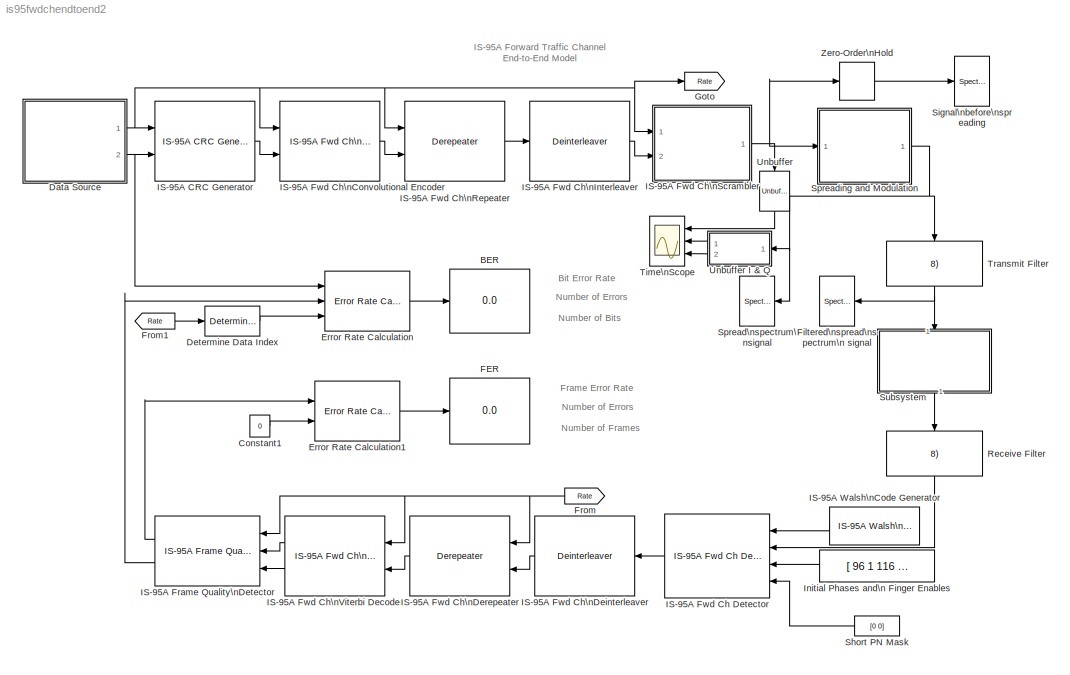
MODEL is95fwdchendtoend2
KIND model
CONFIG AbsTol = 1e-6
CONFIG FixedStep = auto
CONFIG MaxStep = auto
CONFIG MinStep = auto
CONFIG RelTol = 1e-3
CONFIG Solver = VariableStepDiscrete
CONFIG SolverMode = SingleTasking
CONFIG StartTime = 0.0
CONFIG StopTime = 600
BLOCK [Display] BER
  Decimation = 1
  Floating = off
  Format = short
  Ports = [1]
  SampleTime = -1
BLOCK [Constant] Constant1
  Value = 0
  VectorParams1D = on
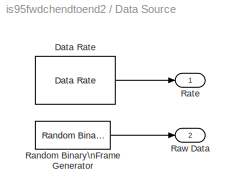
BLOCK [SubSystem] Data Source
  Ports = [0, 2]
  RTWFcnNameOpts = Auto
  RTWFileNameOpts = Auto
  RTWSystemCode = Auto
  ShowPortLabels = on
  TreatAsAtomicUnit = off
BLOCK [Reference] Data Source/Data Rate  REF=cdmaprivate/Data Rate  (lib defined in mdl_204704d9dd4c)
  Ports = [0, 1]
  SourceBlock = cdmaprivate/Data Rate
  SourceType = Base Station Transmitter Data Rate
  rate = Full
BLOCK [Reference] Data Source/Random Binary\nFrame Generator  REF=cdmaprivate/Random Binary\nFrame Generator  (lib defined in mdl_204704d9dd4c)
  N = 268
  Ports = [0, 1]
  SourceBlock = cdmaprivate/Random Binary\nFrame Generator
  SourceType = Random Binary Frame Generator
  Ts = 1/(50*268)
  seed = 1234
BLOCK [Outport] Data Source/Rate
  InitialOutput = 0
  OutputWhenDisabled = held
  Port = 1
BLOCK [Outport] Data Source/Raw Data
  InitialOutput = 0
  OutputWhenDisabled = held
  Port = 2
BLOCK [Reference] Determine Data Index  REF=cdmaprivate/Determine Data Index  (lib defined in mdl_204704d9dd4c)
  Ports = [1, 1]
  SourceBlock = cdmaprivate/Determine Data Index
  SourceType = Determine Data Index
  rateSet = Rate Set I
BLOCK [Reference] Error Rate Calculation  REF=commsink2/Error Rate Calculation
  N = 2*268
  PMode = Port
  Ports = [3, 1]
  RsMode2 = off
  SourceBlock = commsink2/Error Rate Calculation
  SourceType = Error Rate Calculation
  WsName = ErrorVec
  cp_mode = Select samples from port
  st_delay = 2*268
  subframe = []
BLOCK [Reference] Error Rate Calculation1  REF=commsink2/Error Rate Calculation
  N = 0
  PMode = Port
  Ports = [2, 1]
  RsMode2 = off
  SourceBlock = commsink2/Error Rate Calculation
  SourceType = Error Rate Calculation
  WsName = ErrorVec
  cp_mode = Entire frame
  st_delay = 4
  subframe = []
BLOCK [Display] FER
  Decimation = 1
  Floating = off
  Format = short
  Ports = [1]
  SampleTime = -1
BLOCK [Reference] Filtered\nspread\nspectrum\n signal  REF=dspsnks3/Spectrum\nScope
  AxisGrid = on
  AxisLegend = off
  AxisProperties = off
  AxisZoom = on
  BufferSize = 8192
  DisplayProperties = off
  Domain = Frequency
  FFTlength = 1024
  FigPos = [339 281 602 134]
  FrameNumber = off
  HorizSpan = 1
  InheritXIncr = on
  LineProperties = off
  Memory = off
  OpenScopeAtSimStart = on
  OpenScopeImmediately = off
  Overlap = 0
  Ports = [1]
  ScopeProperties = on
  SourceBlock = dspsnks3/Spectrum\nScope
  SourceType = Spectrum Scope
  UseBuffer = on
  XIncr = 1.0
  XLabel = Samples
  XRange = [-Fs/2...Fs/2]
  XUnits = Hertz
  YLabel = Magnitude, dB
  YMax = 30
  YMin = -50
  YUnits = dB
  inpFftLenInherit = off
  numAvg = 10
BLOCK [From] From
  CloseFcn = tagdialog Close
  GotoTag = Rate
BLOCK [From] From1
  CloseFcn = tagdialog Close
  GotoTag = Rate
BLOCK [Goto] Goto
  GotoTag = Rate
  TagVisibility = local
BLOCK [Reference] IS-95A CRC Generator  REF=cdmalibv1p1/IS-95A Common/IS-95A CRC Generator  (lib defined in mdl_d5ab24ac8168)
  Ports = [2, 1]
  SourceBlock = cdmalibv1p1/IS-95A Common/IS-95A CRC Generator
  SourceType = IS-95A CRC Generator
  ch_type = Traffic
  rate_set = Rate Set I
BLOCK [Reference] IS-95A Frame Quality\nDetector  REF=cdmalibv1p1/IS-95A Common/IS-95A Frame Quality \nDetector  (lib defined in mdl_d5ab24ac8168)
  Ports = [3, 2]
  SourceBlock = cdmalibv1p1/IS-95A Common/IS-95A Frame Quality \nDetector
  SourceType = IS-95A Frame Quality Detector
  chType = Traffic
  rate2_metric = 0.9*1.5
  rate3_metric = 0.85*1.5
  rateSet = Rate Set I
BLOCK [Reference] IS-95A Fwd Ch Detector  REF=cdmalibv1p1/IS-95A Mobile Station Receiver/IS-95A Fwd Ch Detector  (lib defined in mdl_d5ab24ac8168)
  Ports = [4, 1]
  SourceBlock = cdmalibv1p1/IS-95A Mobile Station Receiver/IS-95A Fwd Ch Detector
  SourceType = IS-95A Fwd Ch Detector
  numSymb = 1
  rake_buff_size = 3
  rake_oversamp = 8
  rateSet = Rate Set I
  sampTime = 1/(50*384)
  wlshOrd = 6
BLOCK [Reference] IS-95A Fwd Ch\nConvolutional Encoder  REF=cdmalibv1p1/IS-95A Base Station Transmitter/IS-95A Fwd Ch\nConvolutional Encoder  (lib defined in mdl_d5ab24ac8168)
  Ports = [2, 1]
  SourceBlock = cdmalibv1p1/IS-95A Base Station Transmitter/IS-95A Fwd Ch\nConvolutional Encoder
  SourceType = IS-95A Fwd Ch Convolutional Encoder
  ch_type = Traffic
  enc_state = []
  rate_set = Rate Set I
BLOCK [Reference] IS-95A Fwd Ch\nDeinterleaver  REF=cdmalibv1p1/IS-95A Base Station Transmitter/IS-95A Fwd Ch\nInterleaver//Deinterleaver  (lib defined in mdl_d5ab24ac8168)
  Ports = [1, 1]
  SourceBlock = cdmalibv1p1/IS-95A Base Station Transmitter/IS-95A Fwd Ch\nInterleaver//Deinterleaver
  SourceType = IS-95A Fwd Ch Interleaver/Deinterleaver
  ch_type = Traffic
  int_select = Deinterleaver
BLOCK [Reference] IS-95A Fwd Ch\nDerepeater  REF=cdmalibv1p1/IS-95A Base Station Transmitter/IS-95A Fwd Ch\nRepeater//Derepeater  (lib defined in mdl_d5ab24ac8168)
  Ports = [2, 1]
  SourceBlock = cdmalibv1p1/IS-95A Base Station Transmitter/IS-95A Fwd Ch\nRepeater//Derepeater
  SourceType = IS-95A Fwd Ch Repeater/Derepeater
  ch_type = Traffic
  rate_set = Rate Set I
  rep_select = Derepeater
BLOCK [Reference] IS-95A Fwd Ch\nInterleaver  REF=cdmalibv1p1/IS-95A Base Station Transmitter/IS-95A Fwd Ch\nInterleaver//Deinterleaver  (lib defined in mdl_d5ab24ac8168)
  Ports = [1, 1]
  SourceBlock = cdmalibv1p1/IS-95A Base Station Transmitter/IS-95A Fwd Ch\nInterleaver//Deinterleaver
  SourceType = IS-95A Fwd Ch Interleaver/Deinterleaver
  ch_type = Traffic
  int_select = Interleaver
BLOCK [Reference] IS-95A Fwd Ch\nRepeater  REF=cdmalibv1p1/IS-95A Base Station Transmitter/IS-95A Fwd Ch\nRepeater//Derepeater  (lib defined in mdl_d5ab24ac8168)
  Ports = [2, 1]
  SourceBlock = cdmalibv1p1/IS-95A Base Station Transmitter/IS-95A Fwd Ch\nRepeater//Derepeater
  SourceType = IS-95A Fwd Ch Repeater/Derepeater
  ch_type = Traffic
  rate_set = Rate Set I
  rep_select = Repeater
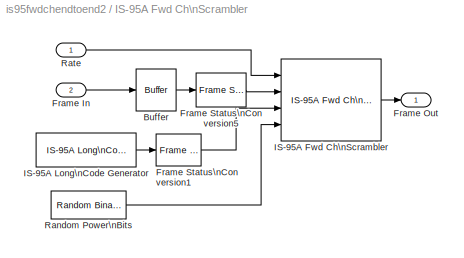
BLOCK [SubSystem] IS-95A Fwd Ch\nScrambler
  MaskCallbackString = |
  MaskDescription = Performs scrambling of the Forward Traffic channel data by the long code and the insertion of power bits in the data.
  MaskEnableString = on,on
  MaskHelp = web(cdmaweb);
  MaskIconFrame = on
  MaskIconOpaque = on
  MaskIconRotate = none
  MaskIconUnits = autoscale
  MaskPromptString = Rate Set|Channel Type
  MaskStyleString = popup(Rate Set I|Rate Set II),popup(Sync|Paging|Traffic)
  MaskToolTipString = on,on
  MaskTunableValueString = on,on
  MaskType = IS-95A Fwd Ch Scrambler
  MaskValueString = Rate Set I|Traffic
  MaskVariableAliases = ,
  MaskVariables = rate_set=@1;chType=@2;
  MaskVisibilityString = on,on
  Ports = [2, 1]
  RTWFcnNameOpts = Auto
  RTWFileNameOpts = Auto
  RTWSystemCode = Auto
  ShowPortLabels = on
  TreatAsAtomicUnit = off
BLOCK [Outport] IS-95A Fwd Ch\nScrambler/ Frame Out
  InitialOutput = 0
  OutputWhenDisabled = held
  Port = 1
BLOCK [Reference] IS-95A Fwd Ch\nScrambler/Buffer  REF=dspbuff3/Buffer
  N = 1
  Ports = [1, 1]
  SourceBlock = dspbuff3/Buffer
  SourceType = Buffer
  V = 0
  ic = 0
BLOCK [Inport] IS-95A Fwd Ch\nScrambler/Frame In
  Interpolate = on
  LatchInput = off
  Port = 2
BLOCK [Reference] IS-95A Fwd Ch\nScrambler/Frame Status\nConversion1  REF=dspsigattribs/Frame Status\nConversion
  Ports = [1, 1]
  SourceBlock = dspsigattribs/Frame Status\nConversion
  SourceType = Frame Status Conversion
  growRefPort = off
  outframe = Frame-based
BLOCK [Reference] IS-95A Fwd Ch\nScrambler/Frame Status\nConversion5  REF=dspsigattribs/Frame Status\nConversion
  Ports = [1, 1]
  SourceBlock = dspsigattribs/Frame Status\nConversion
  SourceType = Frame Status Conversion
  growRefPort = off
  outframe = Frame-based
BLOCK [Reference] IS-95A Fwd Ch\nScrambler/IS-95A Fwd Ch\nScrambler  REF=cdmalibv1p1/IS-95A Base Station Transmitter/IS-95A Fwd Ch\nScrambler  (lib defined in mdl_d5ab24ac8168)
  Ports = [4, 1]
  SourceBlock = cdmalibv1p1/IS-95A Base Station Transmitter/IS-95A Fwd Ch\nScrambler
  SourceType = IS-95A Fwd Ch Scrambler
  chType = Traffic
  rate_set = Rate Set I
BLOCK [Reference] IS-95A Fwd Ch\nScrambler/IS-95A Long\nCode Generator  REF=cdmalibv1p1/IS-95A Common/IS-95A Long\nCode Generator  (lib defined in mdl_d5ab24ac8168)
  Ports = [0, 1]
  SourceBlock = cdmalibv1p1/IS-95A Common/IS-95A Long\nCode Generator
  SourceType = IS-95A Long Code Generator
  num_symb = 1
  tx_lc_dec_ratio = 64
  tx_lc_init_mask = 2^41
  tx_lc_init_state = 2^41
  tx_sample_time = 1/(50*384)
BLOCK [Reference] IS-95A Fwd Ch\nScrambler/Random Power\nBits  REF=cdmaprivate/Random Binary\nFrame Generator  (lib defined in mdl_204704d9dd4c)
  N = 1
  Ports = [0, 1]
  SourceBlock = cdmaprivate/Random Binary\nFrame Generator
  SourceType = Random Binary Frame Generator
  Ts = 1/50/16
  seed = 956742
BLOCK [Inport] IS-95A Fwd Ch\nScrambler/Rate
  Interpolate = on
  LatchInput = off
  Port = 1
BLOCK [Reference] IS-95A Fwd Ch\nViterbi Decoder  REF=cdmalibv1p1/IS-95A Mobile Station Receiver/IS-95A Fwd Ch\nViterbi Decoder  (lib defined in mdl_d5ab24ac8168)
  Ports = [2, 2]
  SourceBlock = cdmalibv1p1/IS-95A Mobile Station Receiver/IS-95A Fwd Ch\nViterbi Decoder
  SourceType = IS-95A Fwd Ch Viterbi Decoder
  chType = Traffic
  decodeLenRatio = 1
  rateSet = Rate Set I
  traceBackLenRatio = 1
BLOCK [Reference] IS-95A Walsh\nCode Generator  REF=cdmalibv1p1/IS-95A Common/IS-95A Walsh\nCode Generator  (lib defined in mdl_d5ab24ac8168)
  Ports = [0, 1]
  SourceBlock = cdmalibv1p1/IS-95A Common/IS-95A Walsh\nCode Generator
  SourceType = IS-95A Walsh Code Generator
  st = 1/(50*384)
  wlshIndices = 38
  wlshOrd = 6
BLOCK [Constant] Initial Phases and\n Finger Enables
  Value = [ 96 1 116 1 239 1 0 0]
  VectorParams1D = on
BLOCK [Reference] Receive Filter  REF=cdmaprivate/Pulse Shaping Filter\n(h//8)  (lib defined in mdl_204704d9dd4c)
  N = 1
  Ports = [1, 1]
  SourceBlock = cdmaprivate/Pulse Shaping Filter\n(h//8)
  SourceType = FIR Pulse Shaping Filter
BLOCK [Constant] Short PN Mask
  Value = [0 0]
  VectorParams1D = on
BLOCK [Reference] Signal\nbefore\nspreading  REF=dspsnks3/Spectrum\nScope
  AxisGrid = on
  AxisLegend = off
  AxisProperties = off
  AxisZoom = on
  BufferSize = 1024
  DisplayProperties = off
  Domain = Frequency
  FFTlength = 1024
  FigPos = [339 599 602 134]
  FrameNumber = off
  HorizSpan = 1
  InheritXIncr = on
  LineProperties = off
  Memory = off
  OpenScopeAtSimStart = on
  OpenScopeImmediately = off
  Overlap = 0
  Ports = [1]
  ScopeProperties = on
  SourceBlock = dspsnks3/Spectrum\nScope
  SourceType = Spectrum Scope
  UseBuffer = on
  XIncr = 1.0
  XLabel = Samples
  XRange = [-Fs/2...Fs/2]
  XUnits = Hertz
  YLabel = Magnitude, dB
  YMax = 30
  YMin = -50
  YUnits = dB
  inpFftLenInherit = off
  numAvg = 10
BLOCK [Reference] Spread\nspectrum\nsignal  REF=dspsnks3/Spectrum\nScope
  AxisGrid = on
  AxisLegend = off
  AxisProperties = off
  AxisZoom = on
  BufferSize = 1024
  DisplayProperties = off
  Domain = Frequency
  FFTlength = 1024
  FigPos = [339 439 602 134]
  FrameNumber = off
  HorizSpan = 1
  InheritXIncr = on
  LineProperties = off
  Memory = off
  OpenScopeAtSimStart = on
  OpenScopeImmediately = off
  Overlap = 0
  Ports = [1]
  ScopeProperties = on
  SourceBlock = dspsnks3/Spectrum\nScope
  SourceType = Spectrum Scope
  UseBuffer = on
  XIncr = 1.0
  XLabel = Samples
  XRange = [-Fs/2...Fs/2]
  XUnits = Hertz
  YLabel = Magnitude, dB
  YMax = 30
  YMin = -50
  YUnits = dB
  inpFftLenInherit = off
  numAvg = 10
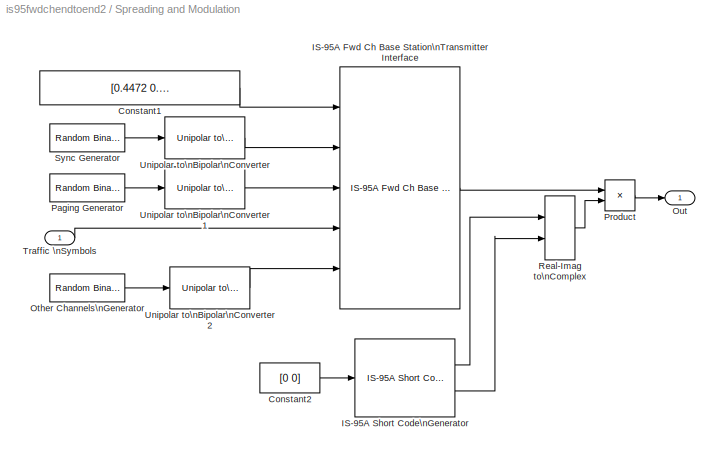
BLOCK [SubSystem] Spreading and Modulation
  MaskDisplay = disp('Combine with\\nSync & Paging\\n---\\nSS Modulate')
  MaskIconFrame = on
  MaskIconOpaque = on
  MaskIconRotate = none
  MaskIconUnits = autoscale
  Ports = [1, 1]
  RTWFcnNameOpts = Auto
  RTWFileNameOpts = Auto
  RTWSystemCode = Auto
  ShowPortLabels = on
  TreatAsAtomicUnit = off
BLOCK [Constant] Spreading and Modulation/Constant1
  Value = [0.4472  0.2170  0.4338  0.306  0.6860]
  VectorParams1D = on
BLOCK [Constant] Spreading and Modulation/Constant2
  Value = [0 0]
  VectorParams1D = on
BLOCK [Reference] Spreading and Modulation/IS-95A Fwd Ch Base Station\nTransmitter Interface  REF=cdmalibv1p1/IS-95A Base Station Transmitter/IS-95A Fwd Ch Base Station\nTransmitter Interface  (lib defined in mdl_d5ab24ac8168)
  Ports = [5, 1]
  SourceBlock = cdmalibv1p1/IS-95A Base Station Transmitter/IS-95A Fwd Ch Base Station\nTransmitter Interface
  SourceType = IS-95A Fwd Ch Base Station Transmitter Interface
  paging_rate = Full
  sampTime = 1/(50*384)
  wlshOrd = 6
  wlsh_indices = [0 32 47 38 23]
BLOCK [Reference] Spreading and Modulation/IS-95A Short Code\nGenerator  REF=cdmalibv1p1/IS-95A Common/IS-95A Short Code\nGenerator  (lib defined in mdl_d5ab24ac8168)
  Ports = [1, 2]
  SourceBlock = cdmalibv1p1/IS-95A Common/IS-95A Short Code\nGenerator
  SourceType = IS-95A Short Code Generator
  numOut = 64
  sampTime = 1/(50*384)
BLOCK [Reference] Spreading and Modulation/Other Channels\nGenerator  REF=cdmaprivate/Random Binary\nFrame Generator  (lib defined in mdl_204704d9dd4c)
  N = 1
  Ports = [0, 1]
  SourceBlock = cdmaprivate/Random Binary\nFrame Generator
  SourceType = Random Binary Frame Generator
  Ts = 1/(50*384)
  seed = 98767657
BLOCK [Outport] Spreading and Modulation/Out 
  InitialOutput = 0
  OutputWhenDisabled = held
  Port = 1
BLOCK [Reference] Spreading and Modulation/Paging Generator  REF=cdmaprivate/Random Binary\nFrame Generator  (lib defined in mdl_204704d9dd4c)
  N = 1
  Ports = [0, 1]
  SourceBlock = cdmaprivate/Random Binary\nFrame Generator
  SourceType = Random Binary Frame Generator
  Ts = 1/(50*384)
  seed = 76767
BLOCK [Product] Spreading and Modulation/Product
  Inputs = 2
  Multiplication = Element-wise(.*)
  Ports = [2, 1]
  SaturateOnIntegerOverflow = on
BLOCK [RealImagToComplex] Spreading and Modulation/Real-Imag to\nComplex
  ConstantPart = 0
  Input = RealAndImag
  Ports = [2, 1]
BLOCK [Reference] Spreading and Modulation/Sync Generator  REF=cdmaprivate/Random Binary\nFrame Generator  (lib defined in mdl_204704d9dd4c)
  N = 1
  Ports = [0, 1]
  SourceBlock = cdmaprivate/Random Binary\nFrame Generator
  SourceType = Random Binary Frame Generator
  Ts = 4 * 1/(50*384)
  seed = 465789
BLOCK [Inport] Spreading and Modulation/Traffic \nSymbols
  Interpolate = on
  LatchInput = off
  Port = 1
BLOCK [Reference] Spreading and Modulation/Unipolar to\nBipolar\nConverter  REF=commutil2/Unipolar to\nBipolar\nConverter
  M = 2
  Ports = [1, 1]
  SourceBlock = commutil2/Unipolar to\nBipolar\nConverter
  SourceType = Unipolar to Bipolar Converter
  polarity = Negative
BLOCK [Reference] Spreading and Modulation/Unipolar to\nBipolar\nConverter1  REF=commutil2/Unipolar to\nBipolar\nConverter
  M = 2
  Ports = [1, 1]
  SourceBlock = commutil2/Unipolar to\nBipolar\nConverter
  SourceType = Unipolar to Bipolar Converter
  polarity = Negative
BLOCK [Reference] Spreading and Modulation/Unipolar to\nBipolar\nConverter2  REF=commutil2/Unipolar to\nBipolar\nConverter
  M = 2
  Ports = [1, 1]
  SourceBlock = commutil2/Unipolar to\nBipolar\nConverter
  SourceType = Unipolar to Bipolar Converter
  polarity = Negative
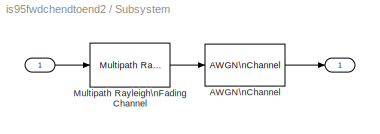
BLOCK [SubSystem] Subsystem
  MaskDisplay = disp('Rayleigh Multipath\\n and  AWGN\\nChannel')
  MaskIconFrame = on
  MaskIconOpaque = on
  MaskIconRotate = none
  MaskIconUnits = autoscale
  Ports = [1, 1]
  RTWFcnNameOpts = Auto
  RTWFileNameOpts = Auto
  RTWSystemCode = Auto
  ShowPortLabels = on
  TreatAsAtomicUnit = off
BLOCK [Inport] Subsystem/ 
  Interpolate = on
  LatchInput = off
  Port = 1
BLOCK [Outport] Subsystem/  
  InitialOutput = []
  OutputWhenDisabled = held
  Port = 1
BLOCK [Reference] Subsystem/AWGN\nChannel  REF=commchan2/AWGN\nChannel
  EsNodB = -3.0
  Ports = [1, 1]
  Ps = 2
  SNRdB = 10
  SourceBlock = commchan2/AWGN\nChannel
  SourceType = AWGN Channel
  Tsym = 1/1228800
  noiseMode = Signal to noise ratio  (Es/No)
  seed = 17583
  variance = 1
BLOCK [Reference] Subsystem/Multipath Rayleigh\nFading Channel  REF=commchan2/Multipath Rayleigh\nFading Channel
  Fd = 175.92
  Ports = [1, 1]
  Seed = 1234
  SourceBlock = commchan2/Multipath Rayleigh\nFading Channel
  SourceType = Multipath Rayleigh Fading Channel
  delayVec = [0 2e-6 14.5e-6]
  gainVecdB = [0 0 -3]
  normGain = on
  simTs = 1/(1228800*8)
BLOCK [Scope] Time\nScope
  DataFormat = Structure
  Decimation = 1
  Floating = off
  Grid = on
  LimitDataPoints = on
  MaxDataPoints = 5000
  NumInputPorts = 3
  Ports = [3]
  SampleInput = off
  SampleTime = 0
  SaveName = ScopeData
  SaveToWorkspace = off
  TickLabels = OneTimeTick
  TimeRange = 0.001041666666666667
  YMax = 3~3~3
  YMin = -3~-3~-3
  ZoomMode = on
BLOCK [Reference] Transmit Filter  REF=cdmaprivate/Pulse Shaping Filter\n(h//8)  (lib defined in mdl_204704d9dd4c)
  N = 8
  Ports = [1, 1]
  SourceBlock = cdmaprivate/Pulse Shaping Filter\n(h//8)
  SourceType = FIR Pulse Shaping Filter
BLOCK [Reference] Unbuffer  REF=dspbuff3/Unbuffer
  Ports = [1, 1]
  SourceBlock = dspbuff3/Unbuffer
  SourceType = Unbuffer
  ic = 0
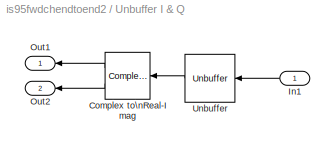
BLOCK [SubSystem] Unbuffer I & Q
  MaskDisplay = disp('Unbuffer\\nI & Q');
  MaskIconFrame = on
  MaskIconOpaque = on
  MaskIconRotate = none
  MaskIconUnits = autoscale
  Ports = [1, 2]
  RTWFcnNameOpts = Auto
  RTWFileNameOpts = Auto
  RTWSystemCode = Auto
  ShowPortLabels = on
  TreatAsAtomicUnit = off
BLOCK [ComplexToRealImag] Unbuffer I & Q/Complex to\nReal-Imag
  Output = RealAndImag
  Ports = [1, 2]
BLOCK [Inport] Unbuffer I & Q/In1
  Interpolate = on
  LatchInput = off
  Port = 1
BLOCK [Outport] Unbuffer I & Q/Out1
  InitialOutput = []
  OutputWhenDisabled = held
  Port = 1
BLOCK [Outport] Unbuffer I & Q/Out2
  InitialOutput = []
  OutputWhenDisabled = held
  Port = 2
BLOCK [Reference] Unbuffer I & Q/Unbuffer  REF=dspbuff3/Unbuffer
  Ports = [1, 1]
  SourceBlock = dspbuff3/Unbuffer
  SourceType = Unbuffer
  ic = 0
BLOCK [ZeroOrderHold] Zero-Order\nHold
  SampleTime = 1/50/384/64
LINE Constant1:1 -> Error Rate Calculation1:2
LINE Data Source/Data Rate:1 -> Data Source/Rate:1
LINE Data Source/Random Binary\nFrame Generator:1 -> Data Source/Raw Data:1
NET Data Source:1 -> Goto:1, IS-95A CRC Generator:1, IS-95A Fwd Ch\nConvolutional Encoder:1, IS-95A Fwd Ch\nRepeater:1, IS-95A Fwd Ch\nScrambler:1
NET Data Source:2 -> Error Rate Calculation:1, IS-95A CRC Generator:2
LINE Determine Data Index:1 -> Error Rate Calculation:3
LINE Error Rate Calculation1:1 -> FER:1
LINE Error Rate Calculation:1 -> BER:1
LINE From1:1 -> Determine Data Index:1
NET From:1 -> IS-95A Frame Quality\nDetector:1, IS-95A Fwd Ch\nDerepeater:1, IS-95A Fwd Ch\nViterbi Decoder:1
LINE IS-95A CRC Generator:1 -> IS-95A Fwd Ch\nConvolutional Encoder:2
LINE IS-95A Frame Quality\nDetector:1 -> Error Rate Calculation1:1
LINE IS-95A Frame Quality\nDetector:2 -> Error Rate Calculation:2
LINE IS-95A Fwd Ch Detector:1 -> IS-95A Fwd Ch\nDeinterleaver:1
LINE IS-95A Fwd Ch\nConvolutional Encoder:1 -> IS-95A Fwd Ch\nRepeater:2
LINE IS-95A Fwd Ch\nDeinterleaver:1 -> IS-95A Fwd Ch\nDerepeater:2
LINE IS-95A Fwd Ch\nDerepeater:1 -> IS-95A Fwd Ch\nViterbi Decoder:2
LINE IS-95A Fwd Ch\nInterleaver:1 -> IS-95A Fwd Ch\nScrambler:2
LINE IS-95A Fwd Ch\nRepeater:1 -> IS-95A Fwd Ch\nInterleaver:1
LINE IS-95A Fwd Ch\nScrambler/Buffer:1 -> IS-95A Fwd Ch\nScrambler/Frame Status\nConversion5:1
LINE IS-95A Fwd Ch\nScrambler/Frame In:1 -> IS-95A Fwd Ch\nScrambler/Buffer:1
LINE IS-95A Fwd Ch\nScrambler/Frame Status\nConversion1:1 -> IS-95A Fwd Ch\nScrambler/IS-95A Fwd Ch\nScrambler:3
LINE IS-95A Fwd Ch\nScrambler/Frame Status\nConversion5:1 -> IS-95A Fwd Ch\nScrambler/IS-95A Fwd Ch\nScrambler:2
LINE IS-95A Fwd Ch\nScrambler/IS-95A Fwd Ch\nScrambler:1 -> IS-95A Fwd Ch\nScrambler/ Frame Out:1
LINE IS-95A Fwd Ch\nScrambler/IS-95A Long\nCode Generator:1 -> IS-95A Fwd Ch\nScrambler/Frame Status\nConversion1:1
LINE IS-95A Fwd Ch\nScrambler/Random Power\nBits:1 -> IS-95A Fwd Ch\nScrambler/IS-95A Fwd Ch\nScrambler:4
LINE IS-95A Fwd Ch\nScrambler/Rate:1 -> IS-95A Fwd Ch\nScrambler/IS-95A Fwd Ch\nScrambler:1
NET IS-95A Fwd Ch\nScrambler:1 -> Spreading and Modulation:1, Unbuffer:1, Zero-Order\nHold:1
LINE IS-95A Fwd Ch\nViterbi Decoder:1 -> IS-95A Frame Quality\nDetector:2
LINE IS-95A Fwd Ch\nViterbi Decoder:2 -> IS-95A Frame Quality\nDetector:3
LINE IS-95A Walsh\nCode Generator:1 -> IS-95A Fwd Ch Detector:1
LINE Initial Phases and\n Finger Enables:1 -> IS-95A Fwd Ch Detector:3
LINE Receive Filter:1 -> IS-95A Fwd Ch Detector:2
LINE Short PN Mask:1 -> IS-95A Fwd Ch Detector:4
LINE Spreading and Modulation/Constant1:1 -> Spreading and Modulation/IS-95A Fwd Ch Base Station\nTransmitter Interface:1
LINE Spreading and Modulation/Constant2:1 -> Spreading and Modulation/IS-95A Short Code\nGenerator:1
LINE Spreading and Modulation/IS-95A Fwd Ch Base Station\nTransmitter Interface:1 -> Spreading and Modulation/Product:1
LINE Spreading and Modulation/IS-95A Short Code\nGenerator:1 -> Spreading and Modulation/Real-Imag to\nComplex:1
LINE Spreading and Modulation/IS-95A Short Code\nGenerator:2 -> Spreading and Modulation/Real-Imag to\nComplex:2
LINE Spreading and Modulation/Other Channels\nGenerator:1 -> Spreading and Modulation/Unipolar to\nBipolar\nConverter2:1
LINE Spreading and Modulation/Paging Generator:1 -> Spreading and Modulation/Unipolar to\nBipolar\nConverter1:1
LINE Spreading and Modulation/Product:1 -> Spreading and Modulation/Out :1
LINE Spreading and Modulation/Real-Imag to\nComplex:1 -> Spreading and Modulation/Product:2
LINE Spreading and Modulation/Sync Generator:1 -> Spreading and Modulation/Unipolar to\nBipolar\nConverter:1
LINE Spreading and Modulation/Traffic \nSymbols:1 -> Spreading and Modulation/IS-95A Fwd Ch Base Station\nTransmitter Interface:4
LINE Spreading and Modulation/Unipolar to\nBipolar\nConverter1:1 -> Spreading and Modulation/IS-95A Fwd Ch Base Station\nTransmitter Interface:3
LINE Spreading and Modulation/Unipolar to\nBipolar\nConverter2:1 -> Spreading and Modulation/IS-95A Fwd Ch Base Station\nTransmitter Interface:5
LINE Spreading and Modulation/Unipolar to\nBipolar\nConverter:1 -> Spreading and Modulation/IS-95A Fwd Ch Base Station\nTransmitter Interface:2
NET Spreading and Modulation:1 -> Spread\nspectrum\nsignal:1, Transmit Filter:1, Unbuffer I & Q:1
LINE Subsystem/ :1 -> Subsystem/Multipath Rayleigh\nFading Channel:1
LINE Subsystem/AWGN\nChannel:1 -> Subsystem/  :1
LINE Subsystem/Multipath Rayleigh\nFading Channel:1 -> Subsystem/AWGN\nChannel:1
LINE Subsystem:1 -> Receive Filter:1
NET Transmit Filter:1 -> Filtered\nspread\nspectrum\n signal:1, Subsystem:1
LINE Unbuffer I & Q/Complex to\nReal-Imag:1 -> Unbuffer I & Q/Out1:1
LINE Unbuffer I & Q/Complex to\nReal-Imag:2 -> Unbuffer I & Q/Out2:1
LINE Unbuffer I & Q/In1:1 -> Unbuffer I & Q/Unbuffer:1
LINE Unbuffer I & Q/Unbuffer:1 -> Unbuffer I & Q/Complex to\nReal-Imag:1
LINE Unbuffer I & Q:1 -> Time\nScope:2
LINE Unbuffer I & Q:2 -> Time\nScope:3
LINE Unbuffer:1 -> Time\nScope:1
LINE Zero-Order\nHold:1 -> Signal\nbefore\nspreading:1
note: NET lines group one-source signal fan-out (src -> all destinations, sorted); 1:1 wires keep LINE
